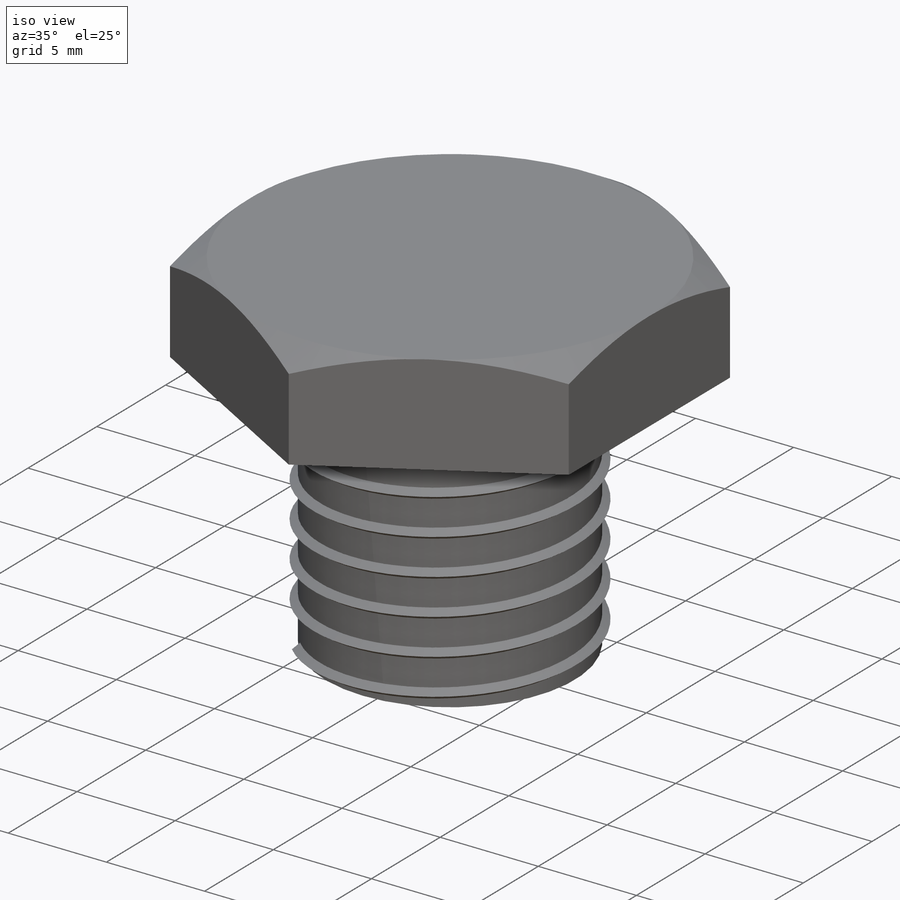
[diagram: iso view]
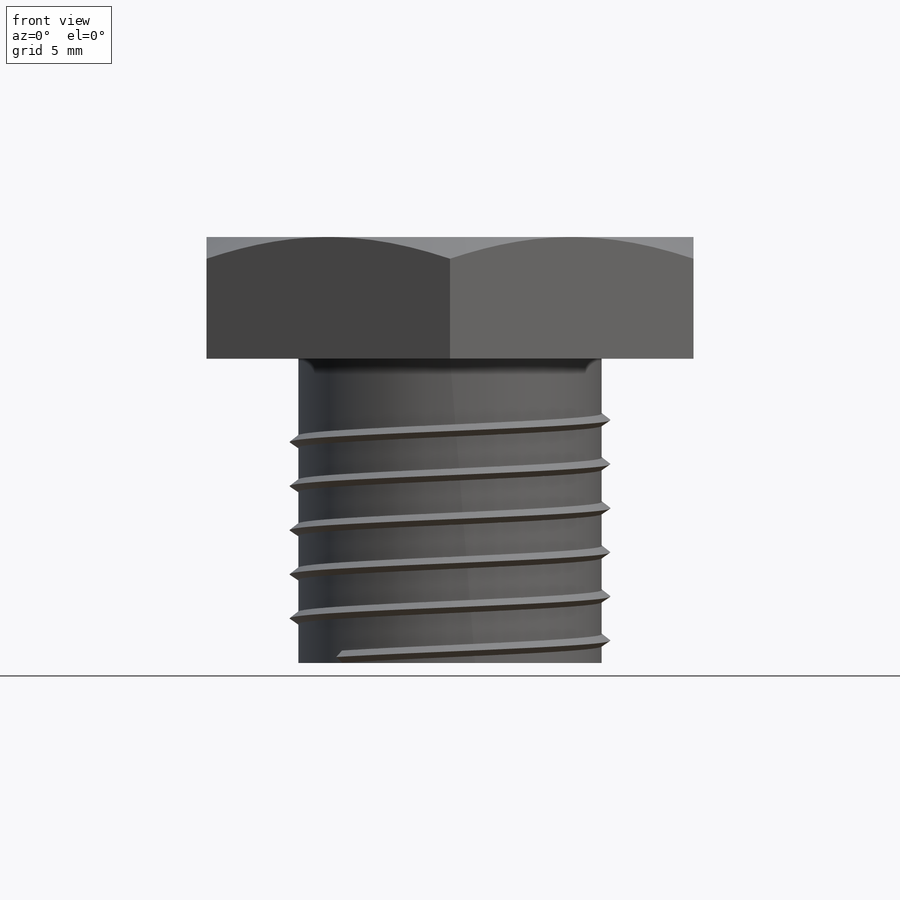
[diagram: front view]
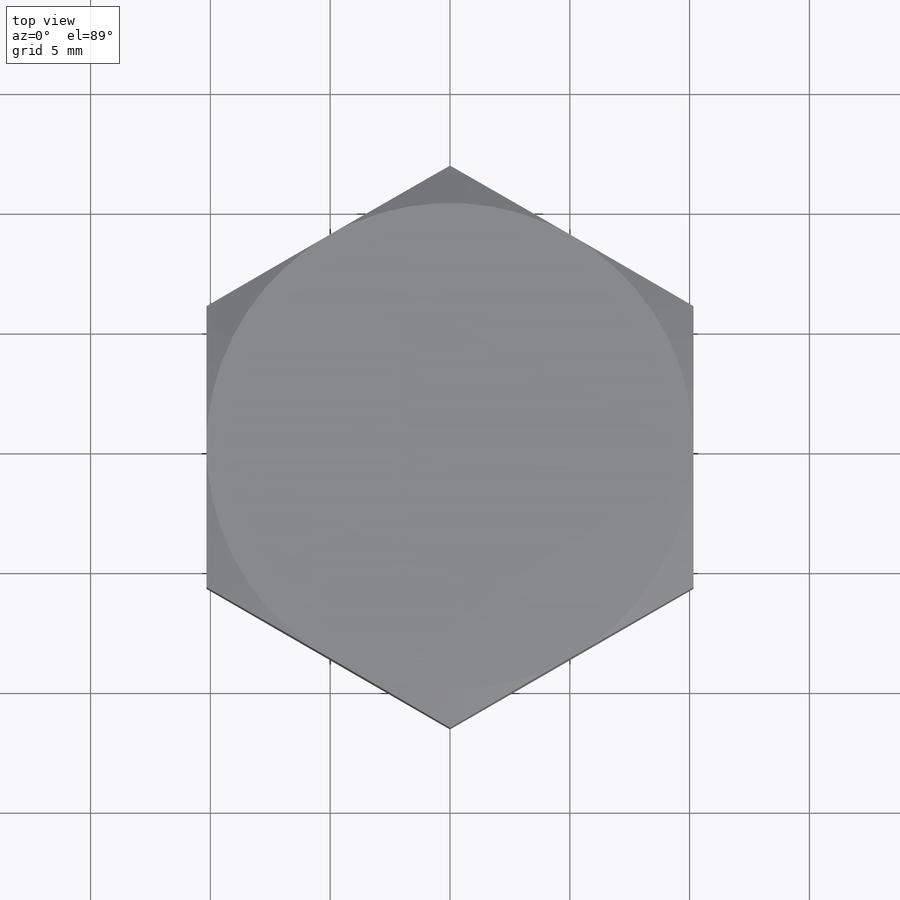
[diagram: top view]
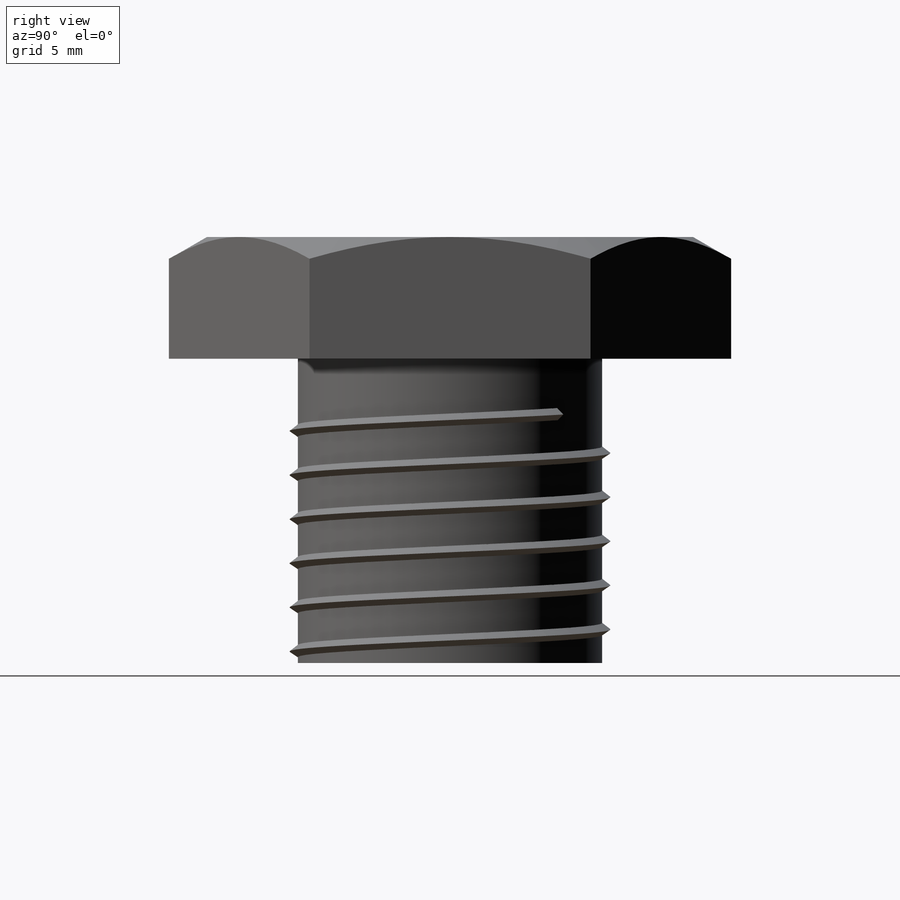
[diagram: right view]
SOLIDWORKS PART (.sldprt)
format: sldprt  version: not decoded by parser v0  size: 336,896 bytes
history: native  units: mm
features: sketch x5, plane x4, extrude x2, material x1, cut_extrude x1, helix x1, sweep x1 (+8 scaffold rows collapsed)
feature tree (23):
  scaffold x8  (default folders/planes/origin — collapsed)
  material  "Material <sin especificar>"
  plane  "Alzado"
  plane  "Planta"
  plane  "Vista lateral"
  sketch  "Croquis1"  dims[D1=12.7mm D2=20.32mm]
  extrude  "Saliente-Extruir1"  Depth=5.08mm
  sketch  "Croquis2"
  cut_extrude  "Cortar-Extruir1"  Depth=1.27mm
  sketch  "Croquis3"  dims[D1=12.7mm]
  extrude  "Saliente-Extruir2"  Depth=12.7mm
  sketch  "Croquis4"
  helix  "Hélice/Espiral1"  Pitch=10.12mm
  plane  "Plano1"
  sketch  "Croquis5"  dims[D1=0.508mm]
  sweep  "Barrer3"
decode coverage: 7 of 10 modeling features carry decoded parameters
note: suppression state not decoded; provenance and decode notes live in map.json
